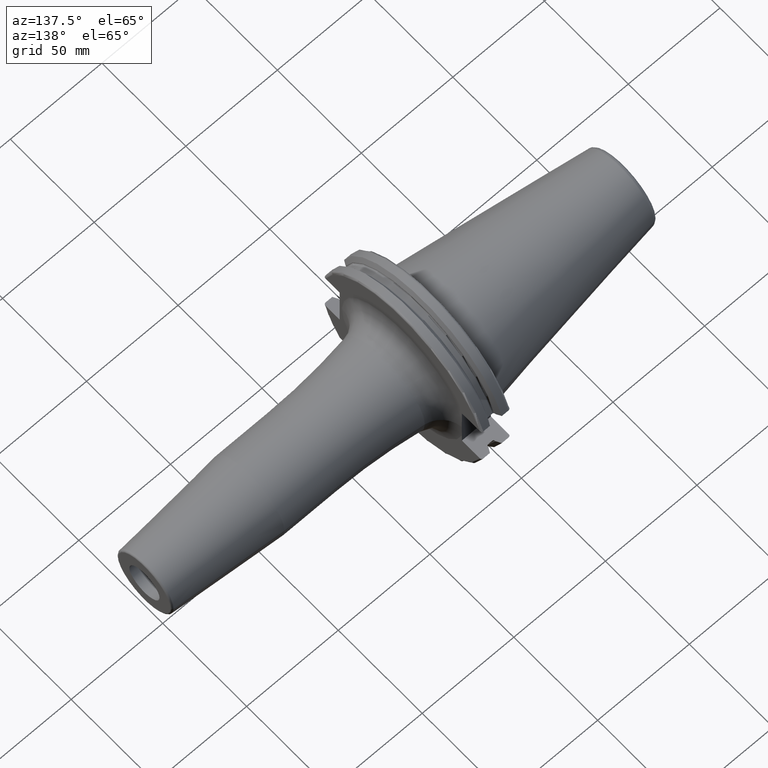
[diagram: clean part render]
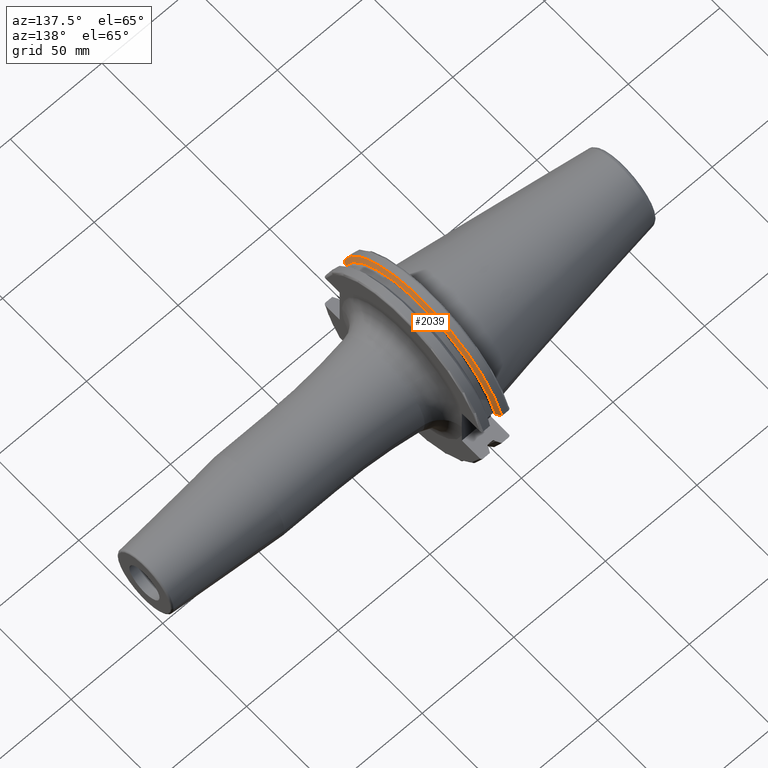
[diagram: same view with one face highlighted and labeled with its STEP entity id]
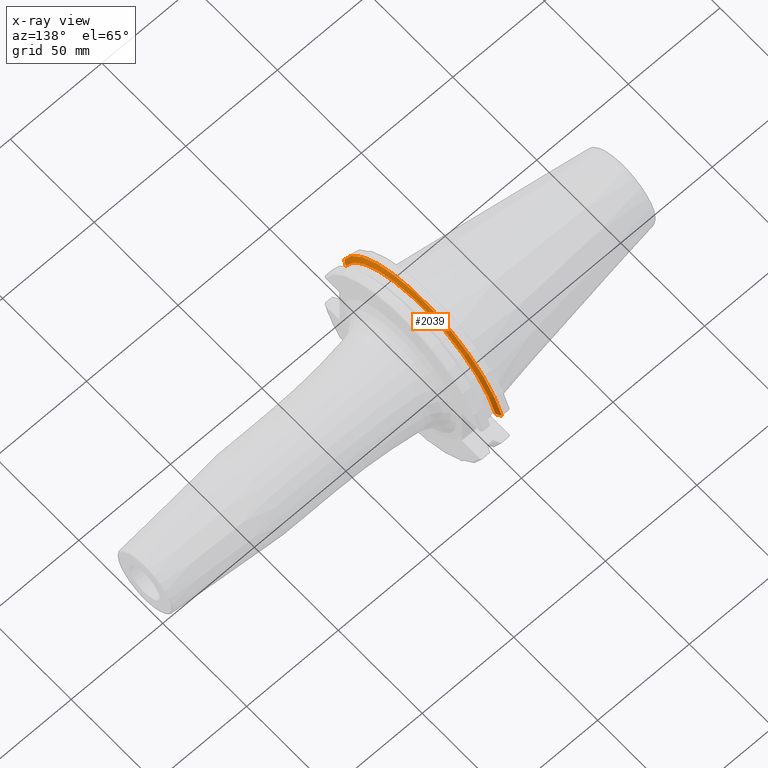
[diagram: x-ray of the same camera — body ghosted, the highlighted face saturated]
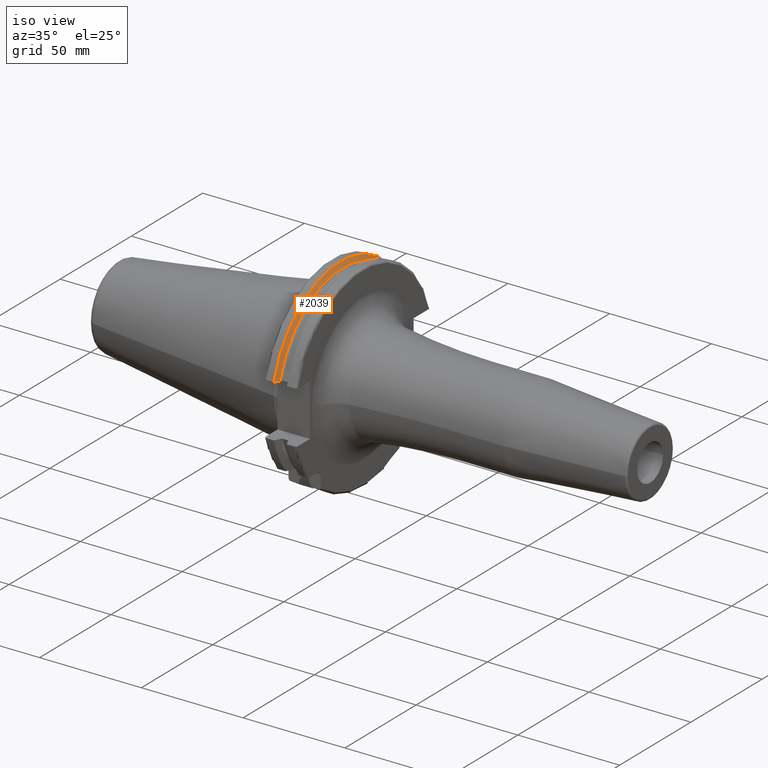
[diagram: same view with one face highlighted and labeled with its STEP entity id]
A machine part, auxiliary view. The second image highlights one B-rep face of the part: STEP entity #2039.
The next image is the same camera in x-ray: the body ghosted, the highlighted face saturated — about 0% of this face is hidden behind the body in this view.
A second angle (iso view) of the same face is appended — the face is thin or edge-on in the first view.
In plain terms, the highlighted conical surface has half-angle 60 deg.
Its self-contained STEP definition (entity closure, byte-faithful):
#322=CARTESIAN_POINT('',(9.2625E0,0.E0,0.E0));
#323=DIRECTION('',(1.E0,0.E0,0.E0));
#324=DIRECTION('',(0.E0,9.606411165078E-1,2.777924499957E-1));
#325=AXIS2_PLACEMENT_3D('',#322,#323,#324);
#353=CARTESIAN_POINT('',(7.934621614173E0,4.699929686974E1,1.29E1));
#354=CARTESIAN_POINT('',(8.085480915039E0,4.672833723043E1,1.29E1));
#355=CARTESIAN_POINT('',(8.384988643814E0,4.619006057422E1,1.29E1));
#356=CARTESIAN_POINT('',(8.827579780447E0,4.539363402665E1,1.29E1));
#357=CARTESIAN_POINT('',(9.118260754177E0,4.486988275438E1,1.29E1));
#358=CARTESIAN_POINT('',(9.2625E0,4.460981716077E1,1.29E1));
#360=CARTESIAN_POINT('',(9.2625E0,-4.460981716077E1,1.29E1));
#361=CARTESIAN_POINT('',(9.118283773553E0,-4.486984125009E1,1.29E1));
#362=CARTESIAN_POINT('',(8.827633549554E0,-4.539353719098E1,1.29E1));
#363=CARTESIAN_POINT('',(8.385043355543E0,-4.618996220278E1,1.29E1));
#364=CARTESIAN_POINT('',(8.085504386120E0,-4.672829507383E1,1.29E1));
#365=CARTESIAN_POINT('',(7.934621614173E0,-4.699929686974E1,1.29E1));
#500=CARTESIAN_POINT('',(7.934621614173E0,0.E0,0.E0));
#501=DIRECTION('',(1.E0,0.E0,0.E0));
#502=DIRECTION('',(0.E0,9.643354064066E-1,2.646832521159E-1));
#503=AXIS2_PLACEMENT_3D('',#500,#501,#502);
#1316=CARTESIAN_POINT('',(9.2625E0,4.460981716077E1,1.29E1));
#1318=VERTEX_POINT('',#1316);
#1328=CARTESIAN_POINT('',(9.2625E0,-4.460981716077E1,1.29E1));
#1330=VERTEX_POINT('',#1328);
#1354=VERTEX_POINT('',#353);
#1355=VERTEX_POINT('',#365);
#2026=CARTESIAN_POINT('',(8.598560807087E0,0.E0,0.E0));
#2027=DIRECTION('',(-1.E0,0.E0,0.E0));
#2028=DIRECTION('',(0.E0,1.E0,0.E0));
#2029=AXIS2_PLACEMENT_3D('',#2026,#2027,#2028);
#2030=CONICAL_SURFACE('',#2029,4.758752358474E1,6.E1);
#2031=ORIENTED_EDGE('',*,*,#1999,.T.);
#2032=ORIENTED_EDGE('',*,*,#1957,.T.);
#2034=ORIENTED_EDGE('',*,*,#2033,.T.);
#2036=ORIENTED_EDGE('',*,*,#2035,.F.);
#2037=EDGE_LOOP('',(#2031,#2032,#2034,#2036));
#2038=FACE_OUTER_BOUND('',#2037,.F.);
#2039=ADVANCED_FACE('',(#2038),#2030,.T.);
#326=CIRCLE('',#325,4.643754716948E1);
#359=B_SPLINE_CURVE_WITH_KNOTS('',3,(#353,#354,#355,#356,#357,#358),
.UNSPECIFIED.,.F.,.F.,(4,1,1,4),(0.E0,3.333333333333E-1,6.666666666667E-1,1.E0),
.UNSPECIFIED.);
#366=B_SPLINE_CURVE_WITH_KNOTS('',3,(#360,#361,#362,#363,#364,#365),
.UNSPECIFIED.,.F.,.F.,(4,1,1,4),(0.E0,3.333333333333E-1,6.666666666667E-1,1.E0),
.UNSPECIFIED.);
#504=CIRCLE('',#503,4.87375E1);
#1957=EDGE_CURVE('',#1318,#1330,#326,.T.);
#1999=EDGE_CURVE('',#1354,#1318,#359,.T.);
#2033=EDGE_CURVE('',#1330,#1355,#366,.T.);
#2035=EDGE_CURVE('',#1354,#1355,#504,.T.);